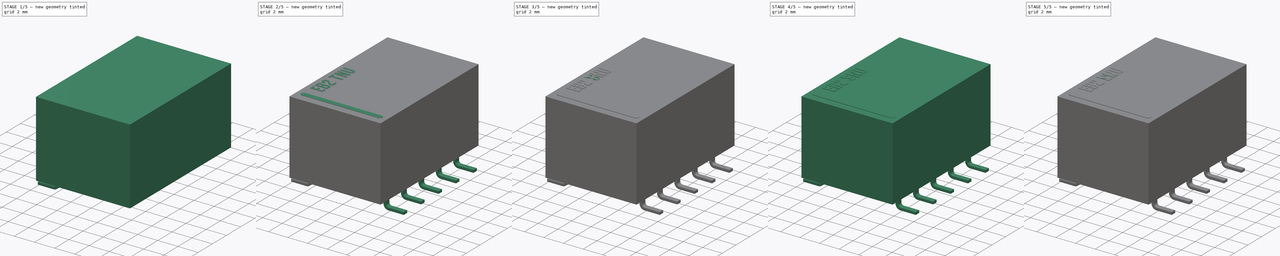
[diagram: build sequence overview — one tinted view per stage of 5, left to right]
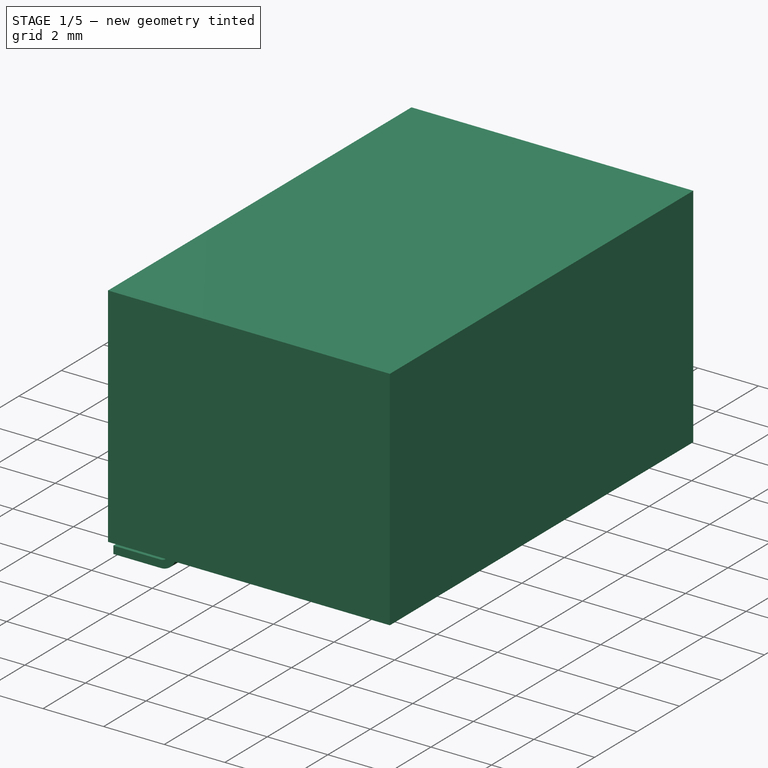
[diagram: stage 1 of 5 — iso view after this stage's code; geometry added in this stage tinted green]
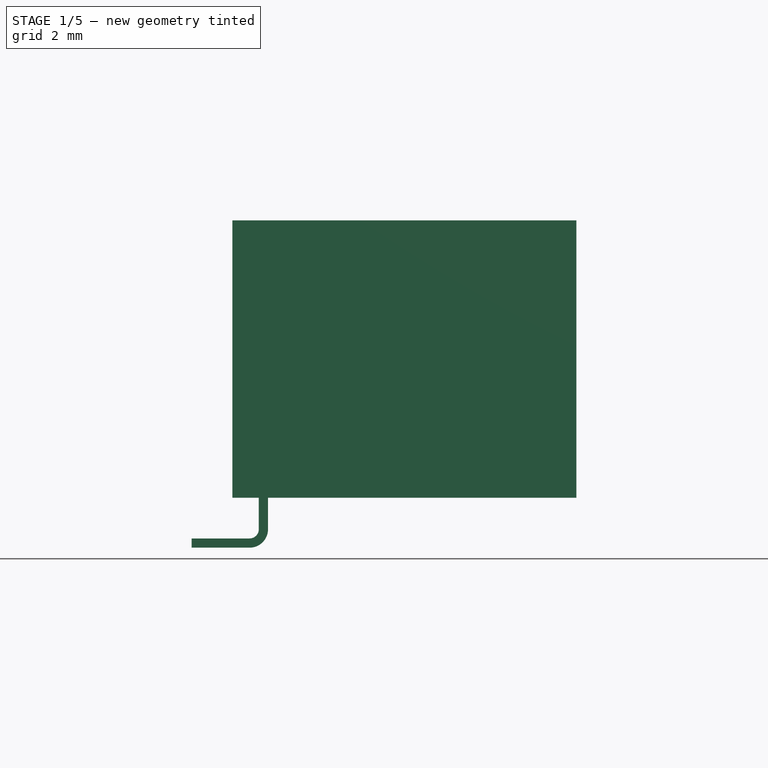
[diagram: stage 1 of 5 — front view after this stage's code; geometry added in this stage tinted green]
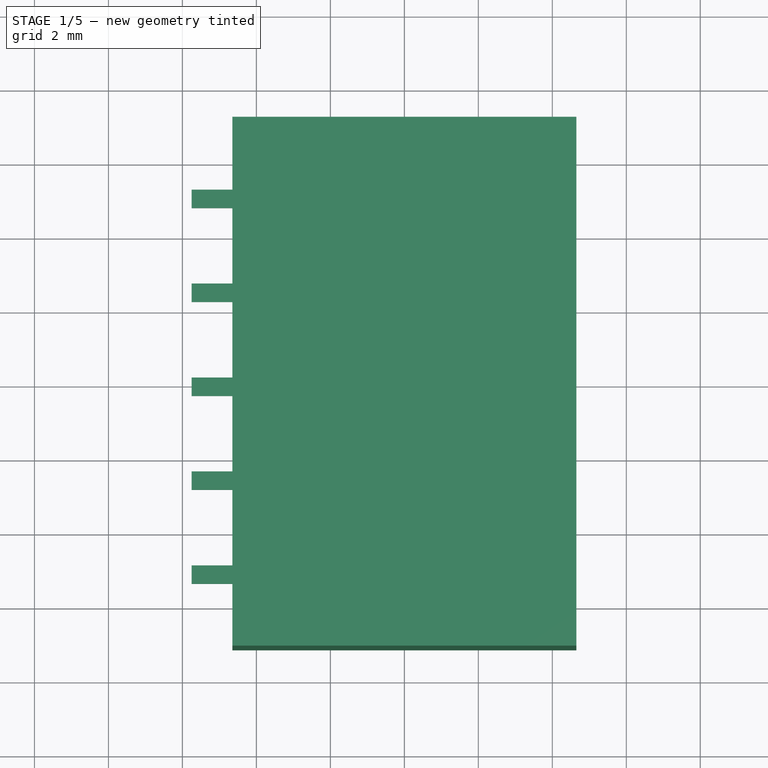
[diagram: stage 1 of 5 — top view after this stage's code; geometry added in this stage tinted green]
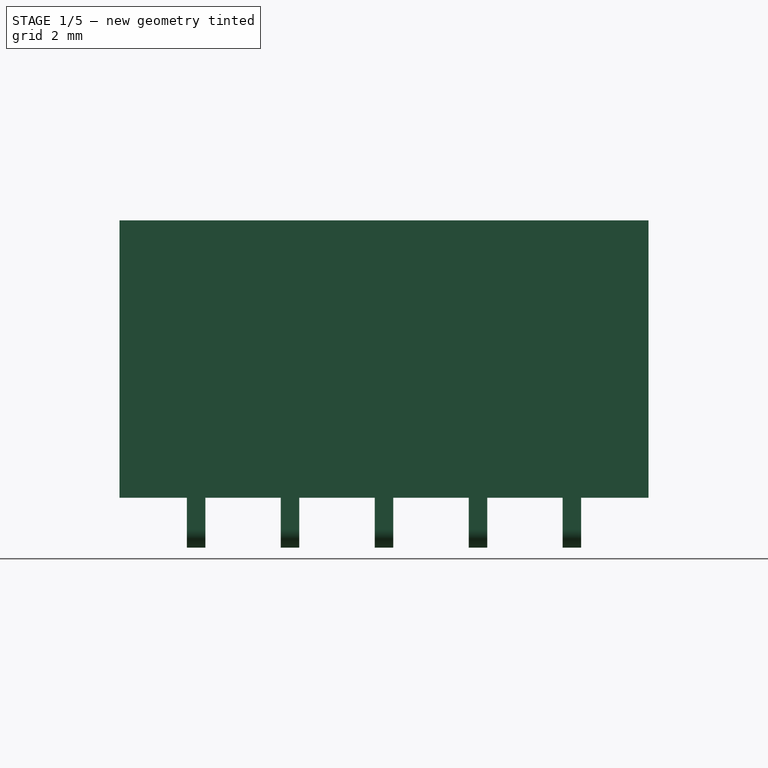
[diagram: stage 1 of 5 — right view after this stage's code; geometry added in this stage tinted green]
FCSTD DOCUMENT  (FreeCAD 0.19R16945 (Git))
Label: Kemet EB2 Series
License: All rights reserved
LicenseURL: http://en.wikipedia.org/wiki/All_rights_reserved
objects: Sketcher::SketchObject×18, PartDesign::Pad×15, PartDesign::Body×9, PartDesign::Pocket×6, PartDesign::Fillet×6, Part::FeaturePython×6, PartDesign::FeatureBase×3, Part::MultiFuse×3, Part::Part2DObjectPython×3, App::Part×3
note: 90 computed .brp shape members not serialized (recipe doc carries the construction recipe); baked Part::Feature solids carry a one-line shape summary decoded from their .brp

FEATURE [PartDesign::Body] Body003  label="EB2-SNU_Body"
  Group = -> [Sketch014,Pad010,Sketch012,Pocket005,Sketch015,Pocket004,Sketch013,Pad011,Sketch016,Pad012,ShapeString001,Pad013]
  Origin = -> Origin006
  Tip = -> Pad013
FEATURE [App::Part] Part001  label="EB2-SNU"
  Group = -> [Body003,Body005,Body004,Array002,Array003,Fusion001]
  Origin = -> Origin005
FEATURE [Sketcher::SketchObject] Sketch021
  AttachmentOffset = pos=(0,0,5.08) rot=(0,0,1;0rad)
  MapMode = 5
  Placement = pos=(0,-5.08,-1.1e-15) rot=(1,0,0;1.5708rad)
  Support = -> [XZ_Plane009]
  sketch-geometry (7):
    g0: LineSegment StartX=-3.935 StartY=1.35 StartZ=0 EndX=-3.935 EndY=0.25 EndZ=0
    g1: LineSegment StartX=-3.935 StartY=0.25 StartZ=0 EndX=-5.75 EndY=0.25 EndZ=0
    g2: LineSegment StartX=-5.75 StartY=0.25 StartZ=0 EndX=-5.75 EndY=0 EndZ=0
    g3: LineSegment StartX=-5.75 StartY=0 StartZ=0 EndX=-3.685 EndY=0 EndZ=0
    g4: LineSegment StartX=-3.685 StartY=0 StartZ=0 EndX=-3.685 EndY=1.35 EndZ=0
    g5: LineSegment StartX=-3.685 StartY=1.35 StartZ=0 EndX=-3.935 EndY=1.35 EndZ=0
    g6: GeomPoint X=-3.81 Y=1.35 Z=0
  constraints (19):
    c: Vertical(g0)
    c: Coincident(g0,g1)
    c: Horizontal(g1)
    c: Coincident(g1,g2)
    c: PointOnObject(g2,g-1)
    c: Vertical(g2)
    c: Coincident(g2,g3)
    c: Horizontal(g3)
    c: Coincident(g3,g4)
    c: Vertical(g4)
    c: Coincident(g4,g5)
    c: Coincident(g5,g0)
    c: Horizontal(g5)
    c: DistanceY(g2,g2) = 0.25
    c: Symmetric(g0,g4,g6)
    c: DistanceX(g6,g-1) = 3.81
    c: Equal(g5,g2)
    c: DistanceX(g1,g6) = 1.94
    c: DistanceY(g4,g4) = 1.35
FEATURE [PartDesign::Pad] Pad018
  Length = 0.5
  Length2 = 100
  Midplane = true
  Placement = pos=(0,0,0) rot=(1,0,0;1.5708rad)
  Profile = -> Sketch021
  Type = 0
FEATURE [PartDesign::Fillet] Fillet004
  Base = -> Pad018 [Edge2]
  BaseFeature = -> Pad018
  Placement = pos=(0,0,0) rot=(1,0,0;1.5708rad)
  Radius = 0.25
FEATURE [PartDesign::Fillet] Fillet005
  Base = -> Fillet004 [Edge20]
  BaseFeature = -> Fillet004
  Placement = pos=(0,0,0) rot=(1,0,0;1.5708rad)
  Radius = 0.5
FEATURE [Part::FeaturePython] Array005  # Draft array (typed FeaturePython)
  Angle = 360
  ArrayType = 0
  Axis = (0,0,1)
  Base = -> Body008
  Center = (0,0,0)
  Fuse = false
  IntervalAxis = (0,0,0)
  IntervalX = (1,0,0)
  IntervalY = (0,2.54,0)
  IntervalZ = (0,0,1)
  NumberPolar = 1
  NumberX = 1
  NumberY = 5
  NumberZ = 1
FEATURE [Sketcher::SketchObject] Sketch023
  MapMode = 5
  Support = -> [XY_Plane010]
  sketch-geometry (4):
    g0: LineSegment StartX=4.65 StartY=-7.15 StartZ=0 EndX=-4.65 EndY=-7.15 EndZ=0
    g1: LineSegment StartX=-4.65 StartY=-7.15 StartZ=0 EndX=-4.65 EndY=7.15 EndZ=0
    g2: LineSegment StartX=-4.65 StartY=7.15 StartZ=0 EndX=4.65 EndY=7.15 EndZ=0
    g3: LineSegment StartX=4.65 StartY=7.15 StartZ=0 EndX=4.65 EndY=-7.15 EndZ=0
  constraints (10):
    c: Coincident(g0,g1)
    c: Coincident(g1,g2)
    c: Coincident(g2,g3)
    c: Coincident(g3,g0)
    c: Horizontal(g0)
    c: Vertical(g1)
    c: Symmetric(g1,g2,g-2)
    c: Symmetric(g2,g0,g-1)
    c: DistanceX(g2,g2) = 9.3
    c: DistanceY(g3,g3) = 14.3
FEATURE [PartDesign::Pad] Pad015  label="MainPad002"
  Length = 8.85
  Length2 = 100
  Profile = -> Sketch023
  Type = 0
FEATURE [Sketcher::SketchObject] Sketch022
  ExternalGeometry = -> [Pad015]
  MapMode = 5
  Placement = pos=(-4.65,0,0) rot=(0.57735,-0.57735,-0.57735;2.0944rad)
  Support = -> [Pad015]
  sketch-geometry (4):
    g0: LineSegment StartX=-7.15 StartY=0 StartZ=0 EndX=7.15 EndY=0 EndZ=0
    g1: LineSegment StartX=7.15 StartY=0 StartZ=0 EndX=7.15 EndY=1.35 EndZ=0
    g2: LineSegment StartX=7.15 StartY=1.35 StartZ=0 EndX=-7.15 EndY=1.35 EndZ=0
    g3: LineSegment StartX=-7.15 StartY=1.35 StartZ=0 EndX=-7.15 EndY=0 EndZ=0
  constraints (11):
    c: Coincident(g0,g1)
    c: Coincident(g1,g2)
    c: Coincident(g2,g3)
    c: Coincident(g3,g0)
    c: Horizontal(g0)
    c: Horizontal(g2)
    c: Vertical(g1)
    c: Vertical(g3)
    c: Coincident(g0,g-3)
    c: PointOnObject(g1,g-4)
    c: DistanceY(g1,g1) = 1.35
FEATURE [PartDesign::Pocket] Pocket007  label="BottomPocket005"
  BaseFeature = -> Pad015
  Length = 5
  Length2 = 100
  Profile = -> Sketch022
  Type = 1
FEATURE [Sketcher::SketchObject] Sketch018
  MapMode = 5
  Placement = pos=(0,0,1.35) rot=(1,0,0;3.14159rad)
  Support = -> [Pocket007]
  sketch-geometry (4):
    g0: LineSegment StartX=-4.45 StartY=6.95 StartZ=0 EndX=4.45 EndY=6.95 EndZ=0
    g1: LineSegment StartX=4.45 StartY=6.95 StartZ=0 EndX=4.45 EndY=-6.95 EndZ=0
    g2: LineSegment StartX=4.45 StartY=-6.95 StartZ=0 EndX=-4.45 EndY=-6.95 EndZ=0
    g3: LineSegment StartX=-4.45 StartY=-6.95 StartZ=0 EndX=-4.45 EndY=6.95 EndZ=0
  constraints (8):
    c: Coincident(g0,g1)
    c: Coincident(g1,g2)
    c: Coincident(g2,g3)
    c: Coincident(g3,g0)
    c: Horizontal(g2)
    c: Vertical(g3)
    c: Symmetric(g0,g0,g-2)
    c: Symmetric(g0,g1,g-1)
FEATURE [PartDesign::Pocket] Pocket006  label="BottomPocket004"
  BaseFeature = -> Pocket007
  Length = 0.1
  Length2 = 100
  Profile = -> Sketch018
  Type = 0
FEATURE [Sketcher::SketchObject] Sketch019
  MapMode = 5
  Placement = pos=(0,0,1.45) rot=(1,0,0;3.14159rad)
  Support = -> [Pocket006]
  sketch-geometry (8):
    g0: LineSegment StartX=-1.8547 StartY=5.55085 StartZ=0 EndX=1.8547 EndY=5.55085 EndZ=0
    g1: LineSegment StartX=2.79274 StartY=4.61281 StartZ=0 EndX=2.79274 EndY=-4.61281 EndZ=0
    g2: LineSegment StartX=1.8547 StartY=-5.55085 StartZ=0 EndX=-1.8547 EndY=-5.55085 EndZ=0
    g3: LineSegment StartX=-2.79274 StartY=-4.61281 StartZ=0 EndX=-2.79274 EndY=4.61281 EndZ=0
    g4: ArcOfCircle CenterX=-1.8547 CenterY=4.61281 CenterZ=0 NormalX=0 NormalY=0 NormalZ=1 AngleXU=0 Radius=0.938044 StartAngle=1.5708 EndAngle=3.14159
    g5: ArcOfCircle CenterX=1.8547 CenterY=4.61281 CenterZ=0 NormalX=0 NormalY=0 NormalZ=1 AngleXU=0 Radius=0.938044 StartAngle=0 EndAngle=1.5708
    g6: ArcOfCircle CenterX=1.8547 CenterY=-4.61281 CenterZ=0 NormalX=0 NormalY=0 NormalZ=1 AngleXU=0 Radius=0.938044 StartAngle=4.71239 EndAngle=6.28319
    g7: ArcOfCircle CenterX=-1.8547 CenterY=-4.61281 CenterZ=0 NormalX=0 NormalY=0 NormalZ=1 AngleXU=0 Radius=0.938044 StartAngle=3.14159 EndAngle=4.71239
  constraints (15):
    c: Horizontal(g0)
    c: Horizontal(g2)
    c: Vertical(g1)
    c: Vertical(g3)
    c: Tangent(g0,g4) = 1.5708
    c: Tangent(g3,g4) = 1.5708
    c: Tangent(g0,g5) = 1.5708
    c: Tangent(g1,g5) = 1.5708
    c: Tangent(g1,g6) = 1.5708
    c: Tangent(g2,g6) = 1.5708
    c: Tangent(g2,g7) = 1.5708
    c: Tangent(g3,g7) = 1.5708
    c: Equal(g7,g6)
    c: Symmetric(g3,g1,g-2)
    c: Symmetric(g0,g2,g-1)
FEATURE [PartDesign::Pad] Pad017  label="BottomPad002"
  BaseFeature = -> Pocket006
  Length = 0.05
  Length2 = 100
  Profile = -> Sketch019
  Type = 0
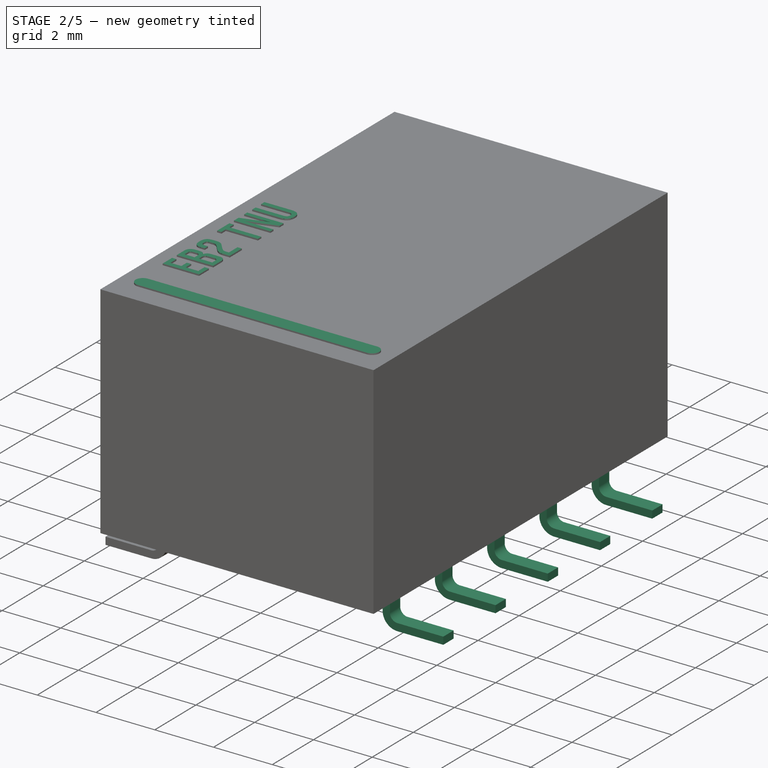
[diagram: stage 2 of 5 — iso view after this stage's code; geometry added in this stage tinted green]
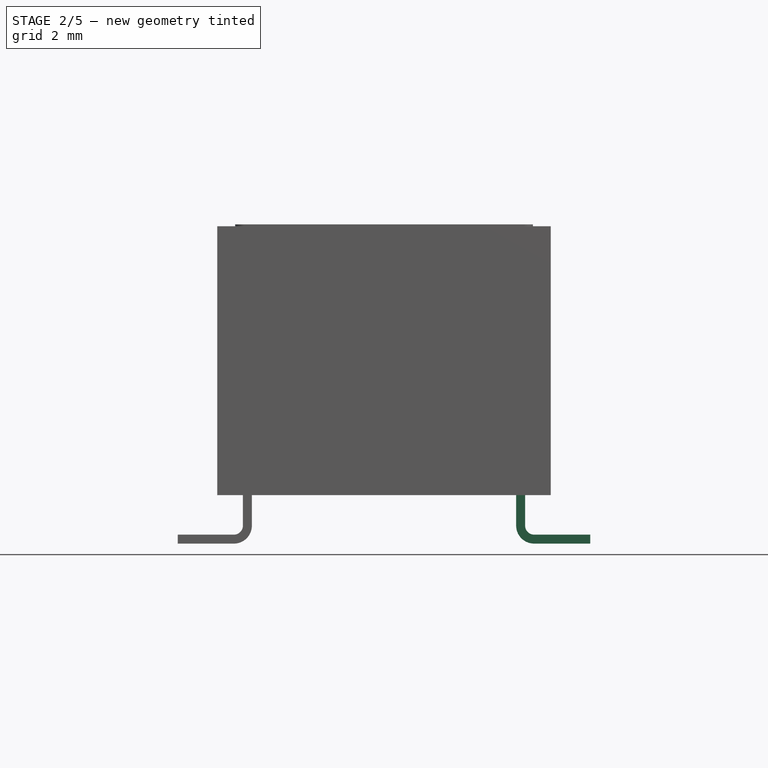
[diagram: stage 2 of 5 — front view after this stage's code; geometry added in this stage tinted green]
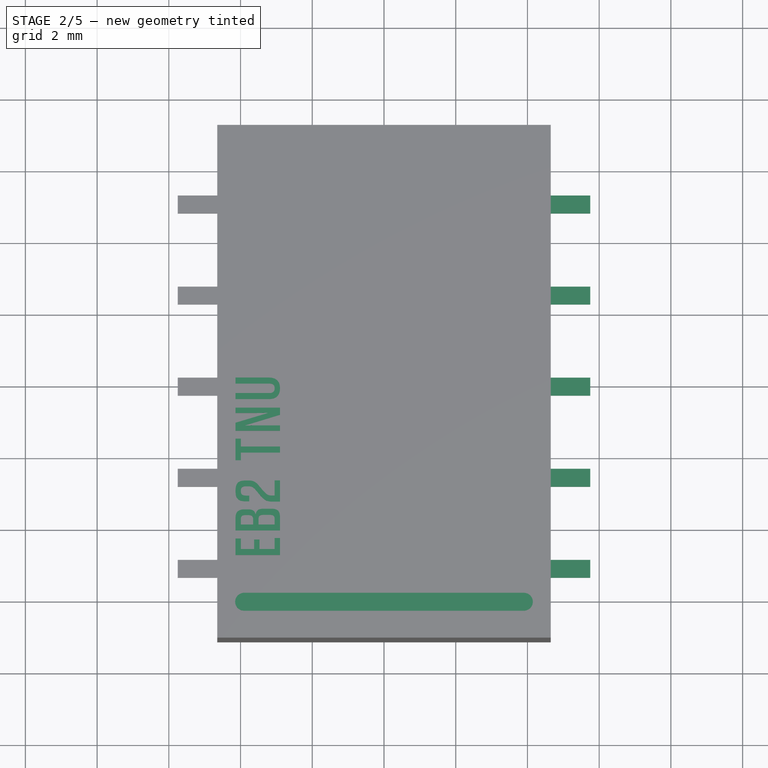
[diagram: stage 2 of 5 — top view after this stage's code; geometry added in this stage tinted green]
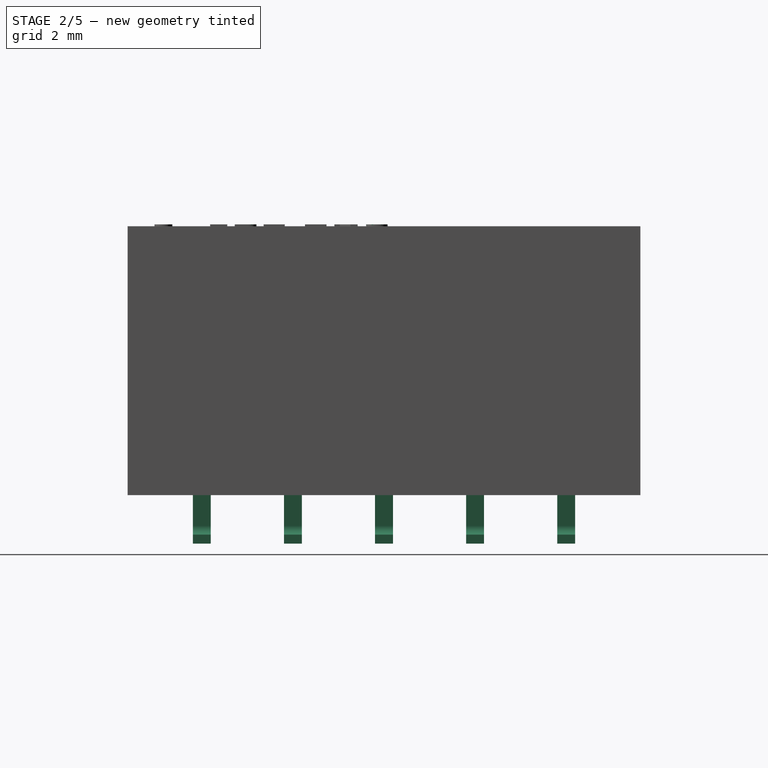
[diagram: stage 2 of 5 — right view after this stage's code; geometry added in this stage tinted green]
FEATURE [PartDesign::Pad] Pad010  label="MainPad001"
  Length = 8.85
  Length2 = 100
  Profile = -> Sketch014
  Type = 0
FEATURE [Sketcher::SketchObject] Sketch012
  ExternalGeometry = -> [Pad010]
  MapMode = 5
  Placement = pos=(-4.65,0,0) rot=(0.57735,-0.57735,-0.57735;2.0944rad)
  Support = -> [Pad010]
  sketch-geometry (4):
    g0: LineSegment StartX=-7.15 StartY=0 StartZ=0 EndX=7.15 EndY=0 EndZ=0
    g1: LineSegment StartX=7.15 StartY=0 StartZ=0 EndX=7.15 EndY=1.35 EndZ=0
    g2: LineSegment StartX=7.15 StartY=1.35 StartZ=0 EndX=-7.15 EndY=1.35 EndZ=0
    g3: LineSegment StartX=-7.15 StartY=1.35 StartZ=0 EndX=-7.15 EndY=0 EndZ=0
  constraints (11):
    c: Coincident(g0,g1)
    c: Coincident(g1,g2)
    c: Coincident(g2,g3)
    c: Coincident(g3,g0)
    c: Horizontal(g0)
    c: Horizontal(g2)
    c: Vertical(g1)
    c: Vertical(g3)
    c: Coincident(g0,g-3)
    c: PointOnObject(g1,g-4)
    c: DistanceY(g1,g1) = 1.35
FEATURE [PartDesign::Pocket] Pocket005  label="BottomPocket003"
  BaseFeature = -> Pad010
  Length = 5
  Length2 = 100
  Profile = -> Sketch012
  Type = 1
FEATURE [Sketcher::SketchObject] Sketch015
  MapMode = 5
  Placement = pos=(0,0,1.35) rot=(1,0,0;3.14159rad)
  Support = -> [Pocket005]
  sketch-geometry (4):
    g0: LineSegment StartX=-4.45 StartY=6.95 StartZ=0 EndX=4.45 EndY=6.95 EndZ=0
    g1: LineSegment StartX=4.45 StartY=6.95 StartZ=0 EndX=4.45 EndY=-6.95 EndZ=0
    g2: LineSegment StartX=4.45 StartY=-6.95 StartZ=0 EndX=-4.45 EndY=-6.95 EndZ=0
    g3: LineSegment StartX=-4.45 StartY=-6.95 StartZ=0 EndX=-4.45 EndY=6.95 EndZ=0
  constraints (8):
    c: Coincident(g0,g1)
    c: Coincident(g1,g2)
    c: Coincident(g2,g3)
    c: Coincident(g3,g0)
    c: Horizontal(g2)
    c: Vertical(g3)
    c: Symmetric(g0,g0,g-2)
    c: Symmetric(g0,g1,g-1)
FEATURE [PartDesign::Pocket] Pocket004  label="BottomPocket002"
  BaseFeature = -> Pocket005
  Length = 0.1
  Length2 = 100
  Profile = -> Sketch015
  Type = 0
FEATURE [PartDesign::Body] Body008
  Group = -> [Sketch021,Pad018,Fillet004,Fillet005]
  Origin = -> Origin010
  Tip = -> Fillet005
FEATURE [PartDesign::FeatureBase] Clone002
  BaseFeature = -> Body008
FEATURE [PartDesign::Body] Body006
  BaseFeature = -> Body008
  Group = -> [Clone002]
  Origin = -> Origin011
  Placement = pos=(0,0,0) rot=(0,0,1;3.14159rad)
  Tip = -> Clone002
FEATURE [Part::FeaturePython] Array004  # Draft array (typed FeaturePython)
  Angle = 360
  ArrayType = 0
  Axis = (0,0,1)
  Base = -> Body006
  Center = (0,0,0)
  Fuse = false
  IntervalAxis = (0,0,0)
  IntervalX = (1,0,0)
  IntervalY = (0,-2.54,0)
  IntervalZ = (0,0,1)
  NumberPolar = 1
  NumberX = 1
  NumberY = 5
  NumberZ = 1
FEATURE [Part::MultiFuse] Fusion002  label="EB2-TNU_Pins"
  Shapes = -> [Array005,Array004]
FEATURE [Sketcher::SketchObject] Sketch020
  ExternalGeometry = -> [Pad017]
  MapMode = 5
  Placement = pos=(0,0,8.85) rot=(0,0,1;0rad)
  Support = -> [Pad017]
  sketch-geometry (4):
    g0: ArcOfCircle CenterX=-3.9 CenterY=-6.15 CenterZ=0 NormalX=0 NormalY=0 NormalZ=1 AngleXU=0 Radius=0.25 StartAngle=1.5708 EndAngle=4.71239
    g1: ArcOfCircle CenterX=3.9 CenterY=-6.15 CenterZ=0 NormalX=0 NormalY=0 NormalZ=1 AngleXU=0 Radius=0.25 StartAngle=4.71239 EndAngle=7.85398
    g2: LineSegment StartX=-3.9 StartY=-6.4 StartZ=0 EndX=3.9 EndY=-6.4 EndZ=0
    g3: LineSegment StartX=-3.9 StartY=-5.9 StartZ=0 EndX=3.9 EndY=-5.9 EndZ=0
  constraints (9):
    c: Tangent(g0,g3) = 1.5708
    c: Tangent(g0,g2) = -1.5708
    c: Tangent(g2,g1) = -1.5708
    c: Tangent(g3,g1) = 1.5708
    c: Horizontal(g2)
    c: Symmetric(g1,g0,g-2)
    c: DistanceY(g1,g1) = 0.5
    c: DistanceY(g-3,g0) = 1
    c: DistanceX(g-3,g0) = 0.75
FEATURE [PartDesign::Pad] Pad016  label="CoilMarkingPad002"
  BaseFeature = -> Pad017
  Length = 0.05
  Length2 = 100
  Profile = -> Sketch020
  Type = 0
FEATURE [Part::Part2DObjectPython] ShapeString002  # Draft 2D object (typed FeaturePython)
  AttachmentOffset = pos=(-1,-1,0) rot=(0,0,-1;1.5708rad)
  FontFile = <userpath>/Desktop/GitHub/freecad-projects/00-fonts/coolvetica condensed rg.ttf
  MapMode = 6
  Placement = pos=(-2.9,-4.9,8.85) rot=(0,0,1;1.5708rad)
  Size = 0.75
  String = EB2 TNU
  Support = -> [Pad016]
  Tracking = 0.125
FEATURE [PartDesign::Pad] Pad014  label="ShapeStringPad002"
  BaseFeature = -> Pad016
  Length = 0.05
  Length2 = 100
  Profile = -> ShapeString002
  Refine = true
  Type = 0
FEATURE [PartDesign::Body] Body007  label="EB2-TNU_Body"
  Group = -> [Sketch023,Pad015,Sketch022,Pocket007,Sketch018,Pocket006,Sketch019,Pad017,Sketch020,Pad016,ShapeString002,Pad014]
  Origin = -> Origin009
  Tip = -> Pad014
FEATURE [App::Part] Part002  label="EB2-TNU"
  Group = -> [Body007,Body008,Body006,Array005,Array004,Fusion002]
  Origin = -> Origin008
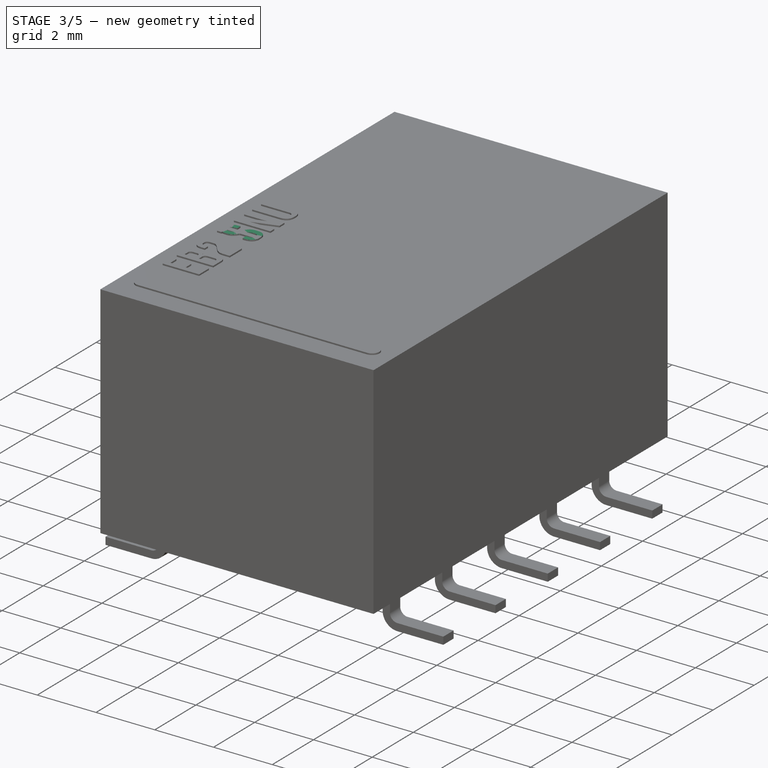
[diagram: stage 3 of 5 — iso view after this stage's code; geometry added in this stage tinted green]
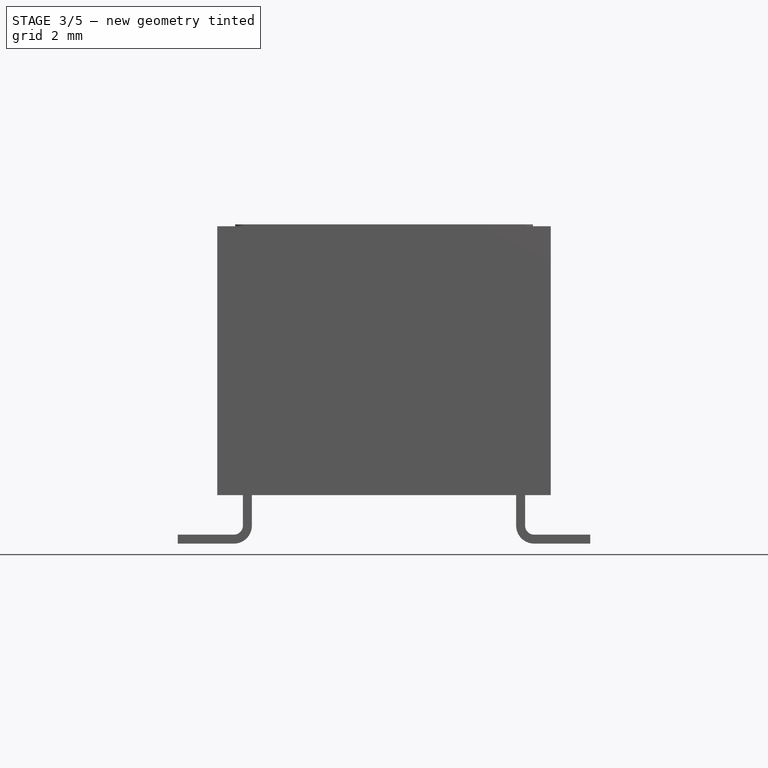
[diagram: stage 3 of 5 — front view after this stage's code; geometry added in this stage tinted green]
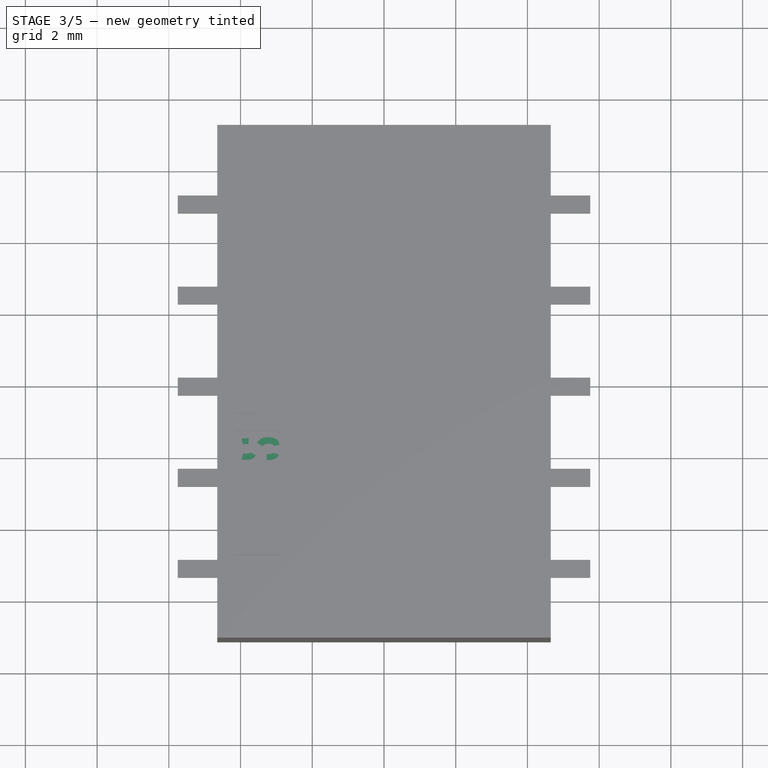
[diagram: stage 3 of 5 — top view after this stage's code; geometry added in this stage tinted green]
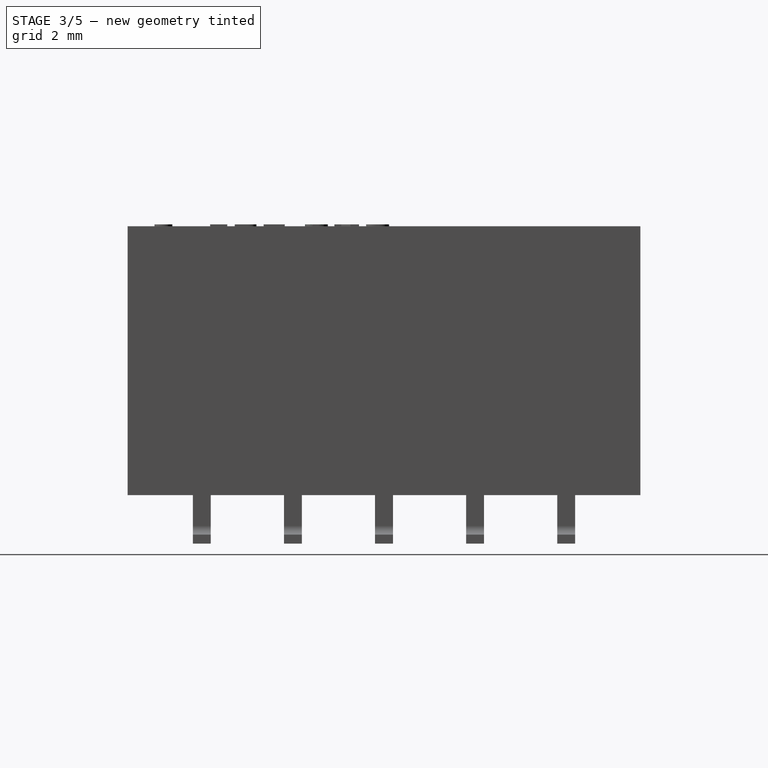
[diagram: stage 3 of 5 — right view after this stage's code; geometry added in this stage tinted green]
FEATURE [PartDesign::Body] Body  label="EB2-NU_Body"
  Group = -> [Sketch,Pad,Sketch003,Pocket,Sketch007,Pocket003,Sketch008,Pad004,Sketch010,Pad006,ShapeString,Pad008]
  Origin = -> Origin
  Tip = -> Pad008
FEATURE [App::Part] Part  label="EB2-NU"
  Group = -> [Body,Body001,Body002,Array,Array001,Fusion]
  Origin = -> Origin001
FEATURE [Sketcher::SketchObject] Sketch014
  MapMode = 5
  Support = -> [XY_Plane005]
  sketch-geometry (4):
    g0: LineSegment StartX=4.65 StartY=-7.15 StartZ=0 EndX=-4.65 EndY=-7.15 EndZ=0
    g1: LineSegment StartX=-4.65 StartY=-7.15 StartZ=0 EndX=-4.65 EndY=7.15 EndZ=0
    g2: LineSegment StartX=-4.65 StartY=7.15 StartZ=0 EndX=4.65 EndY=7.15 EndZ=0
    g3: LineSegment StartX=4.65 StartY=7.15 StartZ=0 EndX=4.65 EndY=-7.15 EndZ=0
  constraints (10):
    c: Coincident(g0,g1)
    c: Coincident(g1,g2)
    c: Coincident(g2,g3)
    c: Coincident(g3,g0)
    c: Horizontal(g0)
    c: Vertical(g1)
    c: Symmetric(g1,g2,g-2)
    c: Symmetric(g2,g0,g-1)
    c: DistanceX(g2,g2) = 9.3
    c: DistanceY(g3,g3) = 14.3
FEATURE [Sketcher::SketchObject] Sketch017
  AttachmentOffset = pos=(0,0,5.08) rot=(0,0,1;0rad)
  MapMode = 5
  Placement = pos=(0,-5.08,-1.1e-15) rot=(1,0,0;1.5708rad)
  Support = -> [XZ_Plane007]
  sketch-geometry (7):
    g0: LineSegment StartX=-3.935 StartY=1.35 StartZ=0 EndX=-3.935 EndY=0.25 EndZ=0
    g1: LineSegment StartX=-3.935 StartY=0.25 StartZ=0 EndX=-5.75 EndY=0.25 EndZ=0
    g2: LineSegment StartX=-5.75 StartY=0.25 StartZ=0 EndX=-5.75 EndY=0 EndZ=0
    g3: LineSegment StartX=-5.75 StartY=0 StartZ=0 EndX=-3.685 EndY=0 EndZ=0
    g4: LineSegment StartX=-3.685 StartY=0 StartZ=0 EndX=-3.685 EndY=1.35 EndZ=0
    g5: LineSegment StartX=-3.685 StartY=1.35 StartZ=0 EndX=-3.935 EndY=1.35 EndZ=0
    g6: GeomPoint X=-3.81 Y=1.35 Z=0
  constraints (19):
    c: Vertical(g0)
    c: Coincident(g0,g1)
    c: Horizontal(g1)
    c: Coincident(g1,g2)
    c: PointOnObject(g2,g-1)
    c: Vertical(g2)
    c: Coincident(g2,g3)
    c: Horizontal(g3)
    c: Coincident(g3,g4)
    c: Vertical(g4)
    c: Coincident(g4,g5)
    c: Coincident(g5,g0)
    c: Horizontal(g5)
    c: DistanceY(g2,g2) = 0.25
    c: Symmetric(g0,g4,g6)
    c: DistanceX(g6,g-1) = 3.81
    c: Equal(g5,g2)
    c: DistanceX(g1,g6) = 1.94
    c: DistanceY(g4,g4) = 1.35
FEATURE [PartDesign::Pad] Pad009
  Length = 0.5
  Length2 = 100
  Midplane = true
  Placement = pos=(0,0,0) rot=(1,0,0;1.5708rad)
  Profile = -> Sketch017
  Type = 0
FEATURE [PartDesign::Fillet] Fillet002
  Base = -> Pad009 [Edge2]
  BaseFeature = -> Pad009
  Placement = pos=(0,0,0) rot=(1,0,0;1.5708rad)
  Radius = 0.25
FEATURE [PartDesign::Fillet] Fillet003
  Base = -> Fillet002 [Edge20]
  BaseFeature = -> Fillet002
  Placement = pos=(0,0,0) rot=(1,0,0;1.5708rad)
  Radius = 0.5
FEATURE [PartDesign::Body] Body005
  Group = -> [Sketch017,Pad009,Fillet002,Fillet003]
  Origin = -> Origin007
  Tip = -> Fillet003
FEATURE [PartDesign::FeatureBase] Clone001
  BaseFeature = -> Body005
FEATURE [Sketcher::SketchObject] Sketch013
  MapMode = 5
  Placement = pos=(0,0,1.45) rot=(1,0,0;3.14159rad)
  Support = -> [Pocket004]
  sketch-geometry (8):
    g0: LineSegment StartX=-1.8547 StartY=5.55085 StartZ=0 EndX=1.8547 EndY=5.55085 EndZ=0
    g1: LineSegment StartX=2.79274 StartY=4.61281 StartZ=0 EndX=2.79274 EndY=-4.61281 EndZ=0
    g2: LineSegment StartX=1.8547 StartY=-5.55085 StartZ=0 EndX=-1.8547 EndY=-5.55085 EndZ=0
    g3: LineSegment StartX=-2.79274 StartY=-4.61281 StartZ=0 EndX=-2.79274 EndY=4.61281 EndZ=0
    g4: ArcOfCircle CenterX=-1.8547 CenterY=4.61281 CenterZ=0 NormalX=0 NormalY=0 NormalZ=1 AngleXU=0 Radius=0.938044 StartAngle=1.5708 EndAngle=3.14159
    g5: ArcOfCircle CenterX=1.8547 CenterY=4.61281 CenterZ=0 NormalX=0 NormalY=0 NormalZ=1 AngleXU=0 Radius=0.938044 StartAngle=0 EndAngle=1.5708
    g6: ArcOfCircle CenterX=1.8547 CenterY=-4.61281 CenterZ=0 NormalX=0 NormalY=0 NormalZ=1 AngleXU=0 Radius=0.938044 StartAngle=4.71239 EndAngle=6.28319
    g7: ArcOfCircle CenterX=-1.8547 CenterY=-4.61281 CenterZ=0 NormalX=0 NormalY=0 NormalZ=1 AngleXU=0 Radius=0.938044 StartAngle=3.14159 EndAngle=4.71239
  constraints (15):
    c: Horizontal(g0)
    c: Horizontal(g2)
    c: Vertical(g1)
    c: Vertical(g3)
    c: Tangent(g0,g4) = 1.5708
    c: Tangent(g3,g4) = 1.5708
    c: Tangent(g0,g5) = 1.5708
    c: Tangent(g1,g5) = 1.5708
    c: Tangent(g1,g6) = 1.5708
    c: Tangent(g2,g6) = 1.5708
    c: Tangent(g2,g7) = 1.5708
    c: Tangent(g3,g7) = 1.5708
    c: Equal(g7,g6)
    c: Symmetric(g3,g1,g-2)
    c: Symmetric(g0,g2,g-1)
FEATURE [PartDesign::Pad] Pad011  label="BottomPad001"
  BaseFeature = -> Pocket004
  Length = 0.05
  Length2 = 100
  Profile = -> Sketch013
  Type = 0
FEATURE [Sketcher::SketchObject] Sketch016
  ExternalGeometry = -> [Pad011]
  MapMode = 5
  Placement = pos=(0,0,8.85) rot=(0,0,1;0rad)
  Support = -> [Pad011]
  sketch-geometry (4):
    g0: ArcOfCircle CenterX=-3.9 CenterY=-6.15 CenterZ=0 NormalX=0 NormalY=0 NormalZ=1 AngleXU=0 Radius=0.25 StartAngle=1.5708 EndAngle=4.71239
    g1: ArcOfCircle CenterX=3.9 CenterY=-6.15 CenterZ=0 NormalX=0 NormalY=0 NormalZ=1 AngleXU=0 Radius=0.25 StartAngle=4.71239 EndAngle=7.85398
    g2: LineSegment StartX=-3.9 StartY=-6.4 StartZ=0 EndX=3.9 EndY=-6.4 EndZ=0
    g3: LineSegment StartX=-3.9 StartY=-5.9 StartZ=0 EndX=3.9 EndY=-5.9 EndZ=0
  constraints (9):
    c: Tangent(g0,g3) = 1.5708
    c: Tangent(g0,g2) = -1.5708
    c: Tangent(g2,g1) = -1.5708
    c: Tangent(g3,g1) = 1.5708
    c: Horizontal(g2)
    c: Symmetric(g1,g0,g-2)
    c: DistanceY(g1,g1) = 0.5
    c: DistanceY(g-3,g0) = 1
    c: DistanceX(g-3,g0) = 0.75
FEATURE [PartDesign::Pad] Pad012  label="CoilMarkingPad001"
  BaseFeature = -> Pad011
  Length = 0.05
  Length2 = 100
  Profile = -> Sketch016
  Type = 0
FEATURE [Part::Part2DObjectPython] ShapeString001  # Draft 2D object (typed FeaturePython)
  AttachmentOffset = pos=(-1,-1,0) rot=(0,0,-1;1.5708rad)
  FontFile = <userpath>/Desktop/GitHub/freecad-projects/00-fonts/coolvetica condensed rg.ttf
  MapMode = 6
  Placement = pos=(-2.9,-4.9,8.85) rot=(0,0,1;1.5708rad)
  Size = 0.75
  String = EB2 SNU
  Support = -> [Pad012]
  Tracking = 0.125
FEATURE [PartDesign::Pad] Pad013  label="ShapeStringPad001"
  BaseFeature = -> Pad012
  Length = 0.05
  Length2 = 100
  Profile = -> ShapeString001
  Refine = true
  Type = 0
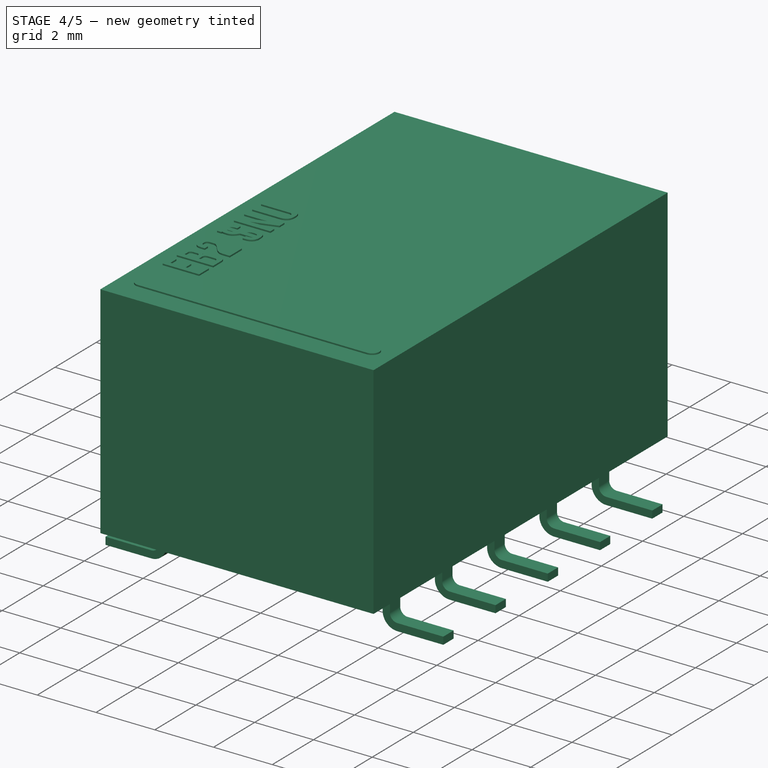
[diagram: stage 4 of 5 — iso view after this stage's code; geometry added in this stage tinted green]
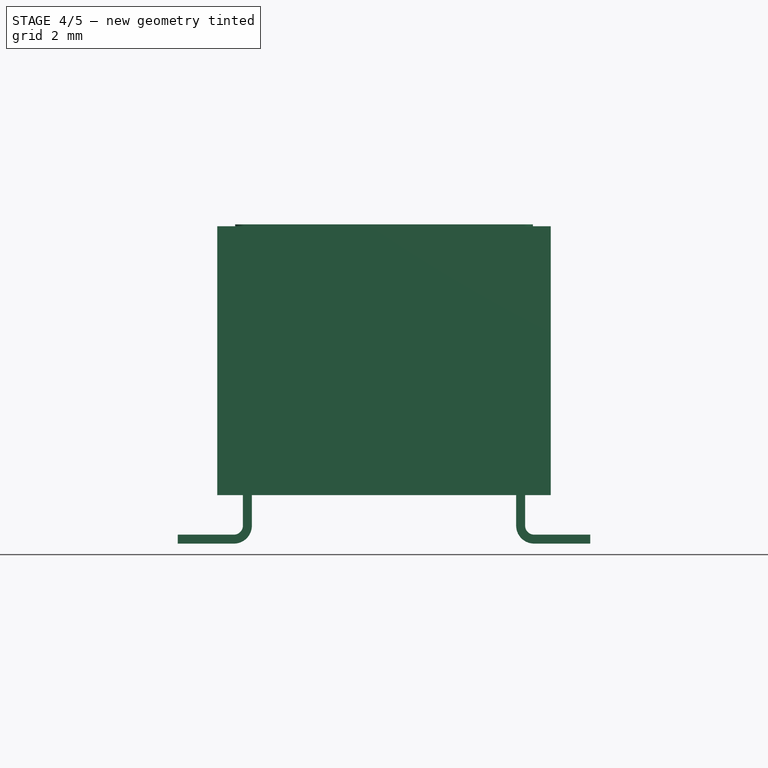
[diagram: stage 4 of 5 — front view after this stage's code; geometry added in this stage tinted green]
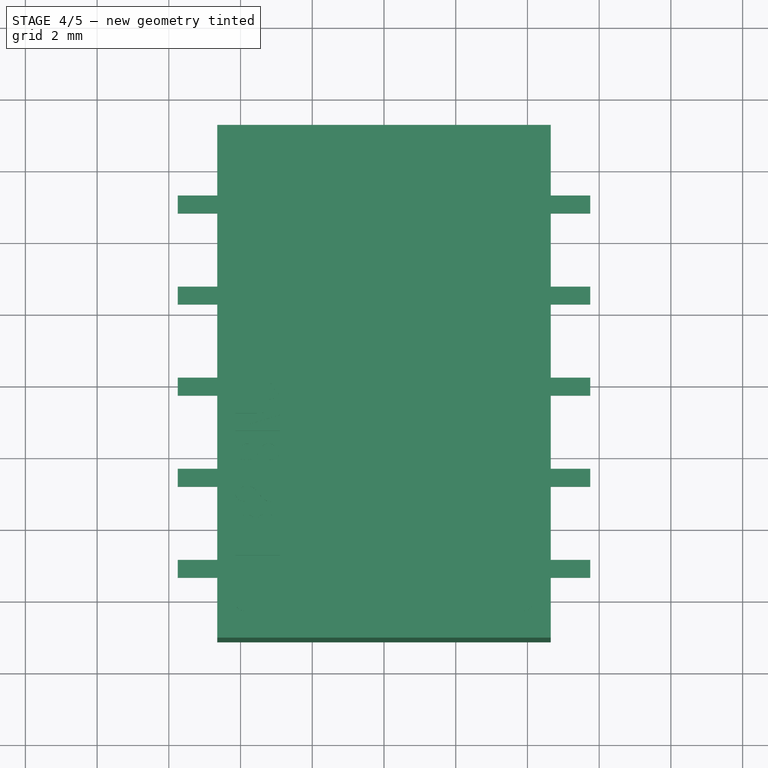
[diagram: stage 4 of 5 — top view after this stage's code; geometry added in this stage tinted green]
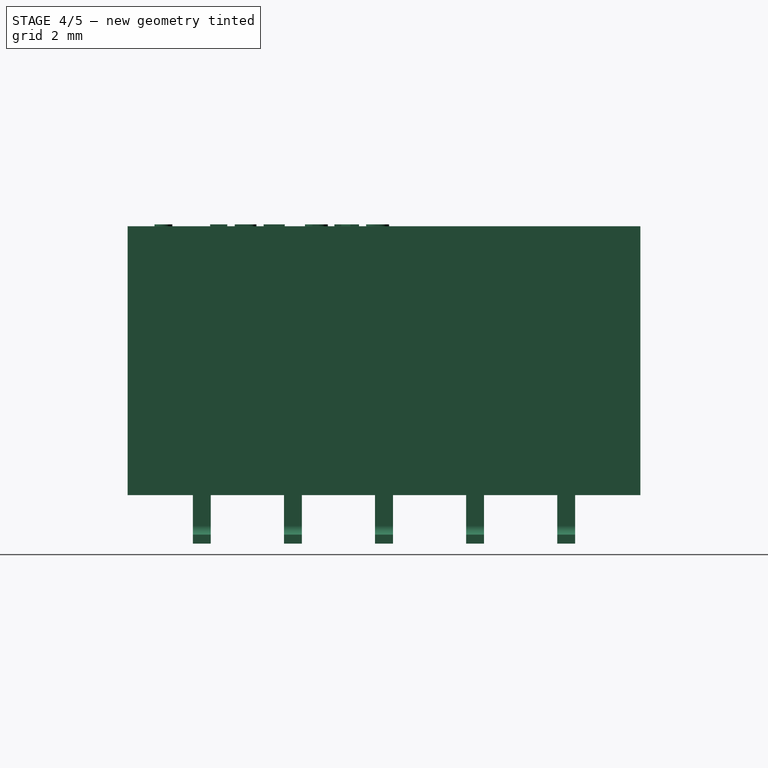
[diagram: stage 4 of 5 — right view after this stage's code; geometry added in this stage tinted green]
FEATURE [Sketcher::SketchObject] Sketch
  MapMode = 5
  Support = -> [XY_Plane]
  sketch-geometry (4):
    g0: LineSegment StartX=4.65 StartY=-7.15 StartZ=0 EndX=-4.65 EndY=-7.15 EndZ=0
    g1: LineSegment StartX=-4.65 StartY=-7.15 StartZ=0 EndX=-4.65 EndY=7.15 EndZ=0
    g2: LineSegment StartX=-4.65 StartY=7.15 StartZ=0 EndX=4.65 EndY=7.15 EndZ=0
    g3: LineSegment StartX=4.65 StartY=7.15 StartZ=0 EndX=4.65 EndY=-7.15 EndZ=0
  constraints (10):
    c: Coincident(g0,g1)
    c: Coincident(g1,g2)
    c: Coincident(g2,g3)
    c: Coincident(g3,g0)
    c: Horizontal(g0)
    c: Vertical(g1)
    c: Symmetric(g1,g2,g-2)
    c: Symmetric(g2,g0,g-1)
    c: DistanceX(g2,g2) = 9.3
    c: DistanceY(g3,g3) = 14.3
FEATURE [PartDesign::Pad] Pad  label="MainPad"
  Length = 8.85
  Length2 = 100
  Profile = -> Sketch
  Type = 0
FEATURE [Sketcher::SketchObject] Sketch003
  ExternalGeometry = -> [Pad]
  MapMode = 5
  Placement = pos=(-4.65,0,0) rot=(0.57735,-0.57735,-0.57735;2.0944rad)
  Support = -> [Pad]
  sketch-geometry (4):
    g0: LineSegment StartX=-7.15 StartY=0 StartZ=0 EndX=7.15 EndY=0 EndZ=0
    g1: LineSegment StartX=7.15 StartY=0 StartZ=0 EndX=7.15 EndY=1.35 EndZ=0
    g2: LineSegment StartX=7.15 StartY=1.35 StartZ=0 EndX=-7.15 EndY=1.35 EndZ=0
    g3: LineSegment StartX=-7.15 StartY=1.35 StartZ=0 EndX=-7.15 EndY=0 EndZ=0
  constraints (11):
    c: Coincident(g0,g1)
    c: Coincident(g1,g2)
    c: Coincident(g2,g3)
    c: Coincident(g3,g0)
    c: Horizontal(g0)
    c: Horizontal(g2)
    c: Vertical(g1)
    c: Vertical(g3)
    c: Coincident(g0,g-3)
    c: PointOnObject(g1,g-4)
    c: DistanceY(g1,g1) = 1.35
FEATURE [PartDesign::Pocket] Pocket  label="BottomPocket"
  BaseFeature = -> Pad
  Length = 5
  Length2 = 100
  Profile = -> Sketch003
  Type = 1
FEATURE [Sketcher::SketchObject] Sketch007
  MapMode = 5
  Placement = pos=(0,0,1.35) rot=(1,0,0;3.14159rad)
  Support = -> [Pocket]
  sketch-geometry (4):
    g0: LineSegment StartX=-4.45 StartY=6.95 StartZ=0 EndX=4.45 EndY=6.95 EndZ=0
    g1: LineSegment StartX=4.45 StartY=6.95 StartZ=0 EndX=4.45 EndY=-6.95 EndZ=0
    g2: LineSegment StartX=4.45 StartY=-6.95 StartZ=0 EndX=-4.45 EndY=-6.95 EndZ=0
    g3: LineSegment StartX=-4.45 StartY=-6.95 StartZ=0 EndX=-4.45 EndY=6.95 EndZ=0
  constraints (8):
    c: Coincident(g0,g1)
    c: Coincident(g1,g2)
    c: Coincident(g2,g3)
    c: Coincident(g3,g0)
    c: Horizontal(g2)
    c: Vertical(g3)
    c: Symmetric(g0,g0,g-2)
    c: Symmetric(g0,g1,g-1)
FEATURE [PartDesign::Pocket] Pocket003  label="BottomPocket001"
  BaseFeature = -> Pocket
  Length = 0.1
  Length2 = 100
  Profile = -> Sketch007
  Type = 0
FEATURE [Sketcher::SketchObject] Sketch008
  MapMode = 5
  Placement = pos=(0,0,1.45) rot=(1,0,0;3.14159rad)
  Support = -> [Pocket003]
  sketch-geometry (8):
    g0: LineSegment StartX=-1.8547 StartY=5.55085 StartZ=0 EndX=1.8547 EndY=5.55085 EndZ=0
    g1: LineSegment StartX=2.79274 StartY=4.61281 StartZ=0 EndX=2.79274 EndY=-4.61281 EndZ=0
    g2: LineSegment StartX=1.8547 StartY=-5.55085 StartZ=0 EndX=-1.8547 EndY=-5.55085 EndZ=0
    g3: LineSegment StartX=-2.79274 StartY=-4.61281 StartZ=0 EndX=-2.79274 EndY=4.61281 EndZ=0
    g4: ArcOfCircle CenterX=-1.8547 CenterY=4.61281 CenterZ=0 NormalX=0 NormalY=0 NormalZ=1 AngleXU=0 Radius=0.938044 StartAngle=1.5708 EndAngle=3.14159
    g5: ArcOfCircle CenterX=1.8547 CenterY=4.61281 CenterZ=0 NormalX=0 NormalY=0 NormalZ=1 AngleXU=0 Radius=0.938044 StartAngle=0 EndAngle=1.5708
    g6: ArcOfCircle CenterX=1.8547 CenterY=-4.61281 CenterZ=0 NormalX=0 NormalY=0 NormalZ=1 AngleXU=0 Radius=0.938044 StartAngle=4.71239 EndAngle=6.28319
    g7: ArcOfCircle CenterX=-1.8547 CenterY=-4.61281 CenterZ=0 NormalX=0 NormalY=0 NormalZ=1 AngleXU=0 Radius=0.938044 StartAngle=3.14159 EndAngle=4.71239
  constraints (15):
    c: Horizontal(g0)
    c: Horizontal(g2)
    c: Vertical(g1)
    c: Vertical(g3)
    c: Tangent(g0,g4) = 1.5708
    c: Tangent(g3,g4) = 1.5708
    c: Tangent(g0,g5) = 1.5708
    c: Tangent(g1,g5) = 1.5708
    c: Tangent(g1,g6) = 1.5708
    c: Tangent(g2,g6) = 1.5708
    c: Tangent(g2,g7) = 1.5708
    c: Tangent(g3,g7) = 1.5708
    c: Equal(g7,g6)
    c: Symmetric(g3,g1,g-2)
    c: Symmetric(g0,g2,g-1)
FEATURE [PartDesign::Pad] Pad004  label="BottomPad"
  BaseFeature = -> Pocket003
  Length = 0.05
  Length2 = 100
  Profile = -> Sketch008
  Type = 0
FEATURE [Sketcher::SketchObject] Sketch010
  ExternalGeometry = -> [Pad004]
  MapMode = 5
  Placement = pos=(0,0,8.85) rot=(0,0,1;0rad)
  Support = -> [Pad004]
  sketch-geometry (4):
    g0: ArcOfCircle CenterX=-3.9 CenterY=-6.15 CenterZ=0 NormalX=0 NormalY=0 NormalZ=1 AngleXU=0 Radius=0.25 StartAngle=1.5708 EndAngle=4.71239
    g1: ArcOfCircle CenterX=3.9 CenterY=-6.15 CenterZ=0 NormalX=0 NormalY=0 NormalZ=1 AngleXU=0 Radius=0.25 StartAngle=4.71239 EndAngle=7.85398
    g2: LineSegment StartX=-3.9 StartY=-6.4 StartZ=0 EndX=3.9 EndY=-6.4 EndZ=0
    g3: LineSegment StartX=-3.9 StartY=-5.9 StartZ=0 EndX=3.9 EndY=-5.9 EndZ=0
  constraints (9):
    c: Tangent(g0,g3) = 1.5708
    c: Tangent(g0,g2) = -1.5708
    c: Tangent(g2,g1) = -1.5708
    c: Tangent(g3,g1) = 1.5708
    c: Horizontal(g2)
    c: Symmetric(g1,g0,g-2)
    c: DistanceY(g1,g1) = 0.5
    c: DistanceY(g-3,g0) = 1
    c: DistanceX(g-3,g0) = 0.75
FEATURE [PartDesign::Pad] Pad006  label="CoilMarkingPad"
  BaseFeature = -> Pad004
  Length = 0.05
  Length2 = 100
  Profile = -> Sketch010
  Type = 0
FEATURE [Part::FeaturePython] Array002  # Draft array (typed FeaturePython)
  Angle = 360
  ArrayType = 0
  Axis = (0,0,1)
  Base = -> Body005
  Center = (0,0,0)
  Fuse = false
  IntervalAxis = (0,0,0)
  IntervalX = (1,0,0)
  IntervalY = (0,2.54,0)
  IntervalZ = (0,0,1)
  NumberPolar = 1
  NumberX = 1
  NumberY = 5
  NumberZ = 1
FEATURE [PartDesign::Body] Body004
  BaseFeature = -> Body005
  Group = -> [Clone001]
  Origin = -> Origin004
  Placement = pos=(0,0,0) rot=(0,0,1;3.14159rad)
  Tip = -> Clone001
FEATURE [Part::FeaturePython] Array003  # Draft array (typed FeaturePython)
  Angle = 360
  ArrayType = 0
  Axis = (0,0,1)
  Base = -> Body004
  Center = (0,0,0)
  Fuse = false
  IntervalAxis = (0,0,0)
  IntervalX = (1,0,0)
  IntervalY = (0,-2.54,0)
  IntervalZ = (0,0,1)
  NumberPolar = 1
  NumberX = 1
  NumberY = 5
  NumberZ = 1
FEATURE [Part::MultiFuse] Fusion001  label="EB2-SNU_Pins"
  Shapes = -> [Array002,Array003]
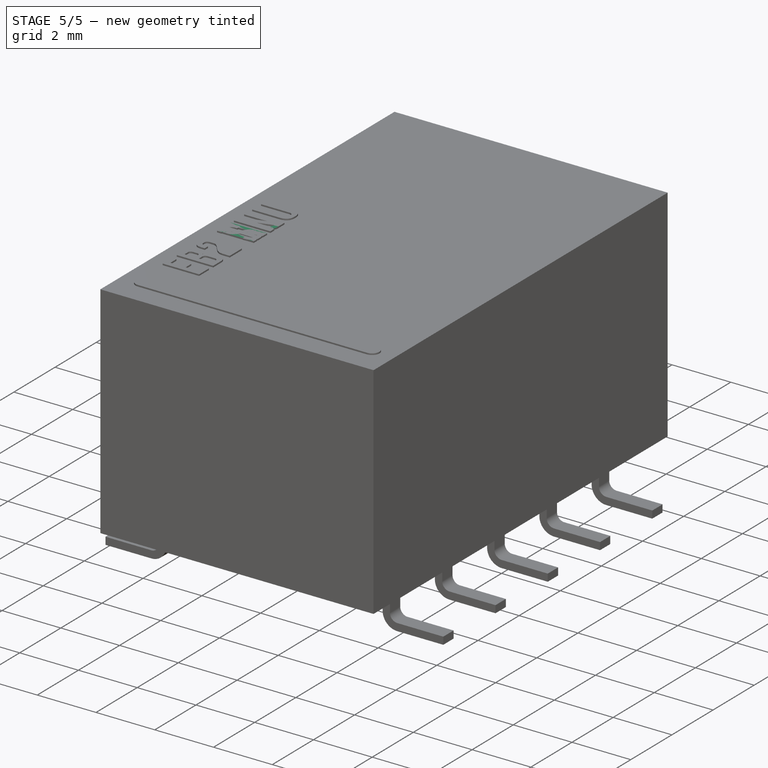
[diagram: stage 5 of 5 — iso view after this stage's code; geometry added in this stage tinted green]
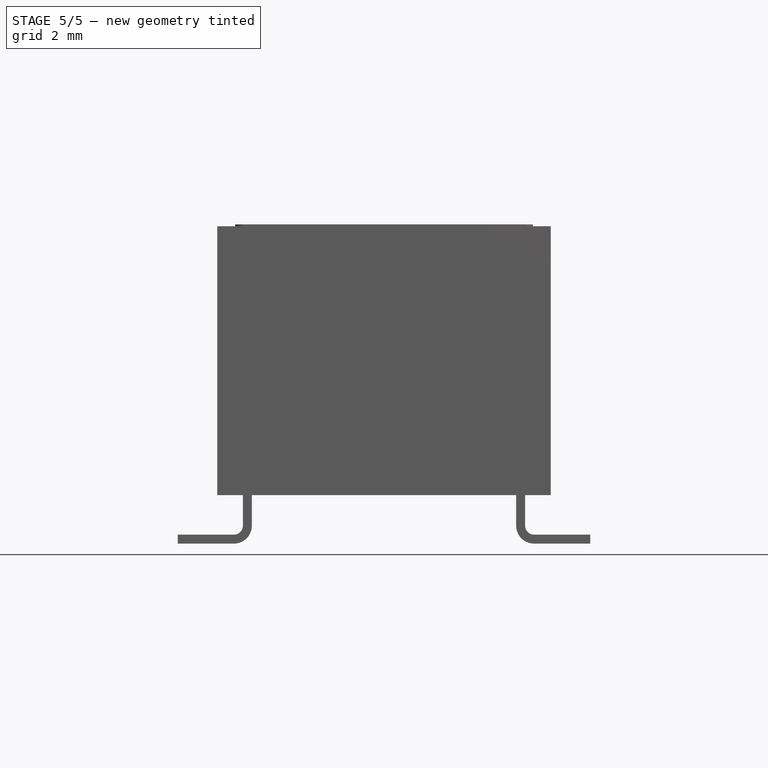
[diagram: stage 5 of 5 — front view after this stage's code; geometry added in this stage tinted green]
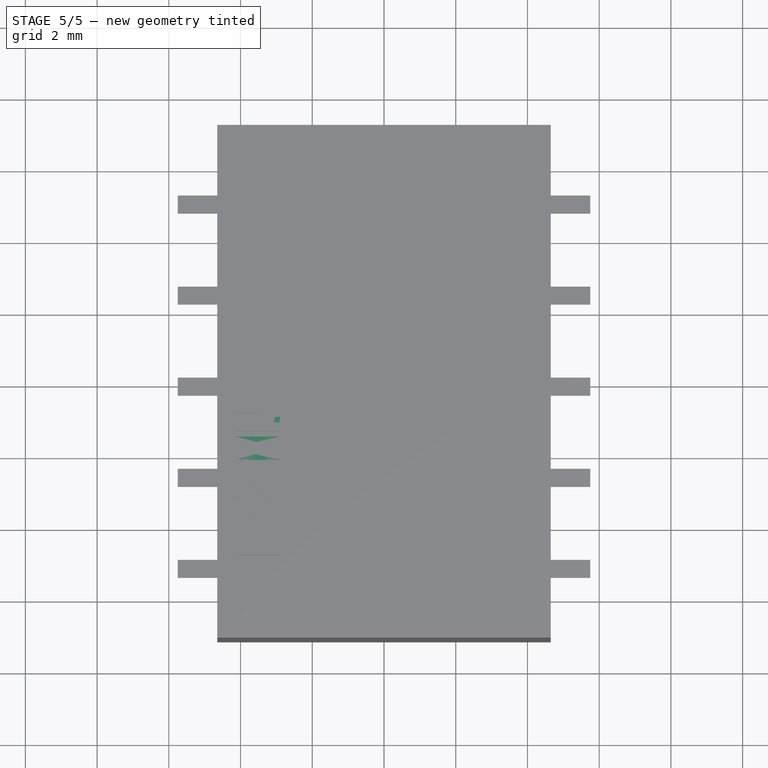
[diagram: stage 5 of 5 — top view after this stage's code; geometry added in this stage tinted green]
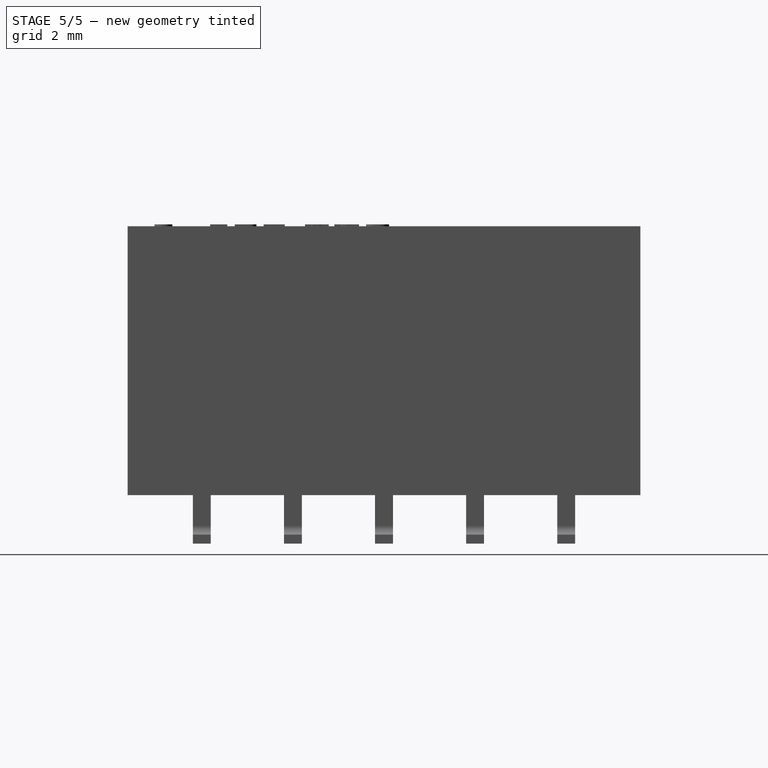
[diagram: stage 5 of 5 — right view after this stage's code; geometry added in this stage tinted green]
FEATURE [Sketcher::SketchObject] Sketch011
  AttachmentOffset = pos=(0,0,5.08) rot=(0,0,1;0rad)
  MapMode = 5
  Placement = pos=(0,-5.08,-1.1e-15) rot=(1,0,0;1.5708rad)
  Support = -> [XZ_Plane002]
  sketch-geometry (7):
    g0: LineSegment StartX=-3.935 StartY=1.35 StartZ=0 EndX=-3.935 EndY=0.25 EndZ=0
    g1: LineSegment StartX=-3.935 StartY=0.25 StartZ=0 EndX=-5.75 EndY=0.25 EndZ=0
    g2: LineSegment StartX=-5.75 StartY=0.25 StartZ=0 EndX=-5.75 EndY=0 EndZ=0
    g3: LineSegment StartX=-5.75 StartY=0 StartZ=0 EndX=-3.685 EndY=0 EndZ=0
    g4: LineSegment StartX=-3.685 StartY=0 StartZ=0 EndX=-3.685 EndY=1.35 EndZ=0
    g5: LineSegment StartX=-3.685 StartY=1.35 StartZ=0 EndX=-3.935 EndY=1.35 EndZ=0
    g6: GeomPoint X=-3.81 Y=1.35 Z=0
  constraints (19):
    c: Vertical(g0)
    c: Coincident(g0,g1)
    c: Horizontal(g1)
    c: Coincident(g1,g2)
    c: PointOnObject(g2,g-1)
    c: Vertical(g2)
    c: Coincident(g2,g3)
    c: Horizontal(g3)
    c: Coincident(g3,g4)
    c: Vertical(g4)
    c: Coincident(g4,g5)
    c: Coincident(g5,g0)
    c: Horizontal(g5)
    c: DistanceY(g2,g2) = 0.25
    c: Symmetric(g0,g4,g6)
    c: DistanceX(g6,g-1) = 3.81
    c: Equal(g5,g2)
    c: DistanceX(g1,g6) = 1.94
    c: DistanceY(g4,g4) = 1.35
FEATURE [PartDesign::Pad] Pad007
  Length = 0.5
  Length2 = 100
  Midplane = true
  Placement = pos=(0,0,0) rot=(1,0,0;1.5708rad)
  Profile = -> Sketch011
  Type = 0
FEATURE [PartDesign::Fillet] Fillet
  Base = -> Pad007 [Edge2]
  BaseFeature = -> Pad007
  Placement = pos=(0,0,0) rot=(1,0,0;1.5708rad)
  Radius = 0.25
FEATURE [PartDesign::Fillet] Fillet001
  Base = -> Fillet [Edge20]
  BaseFeature = -> Fillet
  Placement = pos=(0,0,0) rot=(1,0,0;1.5708rad)
  Radius = 0.5
FEATURE [PartDesign::Body] Body001
  Group = -> [Sketch011,Pad007,Fillet,Fillet001]
  Origin = -> Origin002
  Tip = -> Fillet001
FEATURE [PartDesign::FeatureBase] Clone
  BaseFeature = -> Body001
FEATURE [PartDesign::Body] Body002
  BaseFeature = -> Body001
  Group = -> [Clone]
  Origin = -> Origin003
  Placement = pos=(0,0,0) rot=(0,0,1;3.14159rad)
  Tip = -> Clone
FEATURE [Part::FeaturePython] Array  # Draft array (typed FeaturePython)
  Angle = 360
  ArrayType = 0
  Axis = (0,0,1)
  Base = -> Body001
  Center = (0,0,0)
  Fuse = false
  IntervalAxis = (0,0,0)
  IntervalX = (1,0,0)
  IntervalY = (0,2.54,0)
  IntervalZ = (0,0,1)
  NumberPolar = 1
  NumberX = 1
  NumberY = 5
  NumberZ = 1
FEATURE [Part::FeaturePython] Array001  # Draft array (typed FeaturePython)
  Angle = 360
  ArrayType = 0
  Axis = (0,0,1)
  Base = -> Body002
  Center = (0,0,0)
  Fuse = false
  IntervalAxis = (0,0,0)
  IntervalX = (1,0,0)
  IntervalY = (0,-2.54,0)
  IntervalZ = (0,0,1)
  NumberPolar = 1
  NumberX = 1
  NumberY = 5
  NumberZ = 1
FEATURE [Part::MultiFuse] Fusion  label="EB2-NU_Pins"
  Shapes = -> [Array,Array001]
FEATURE [Part::Part2DObjectPython] ShapeString  # Draft 2D object (typed FeaturePython)
  AttachmentOffset = pos=(-1,-1,0) rot=(0,0,-1;1.5708rad)
  FontFile = <userpath>/Desktop/GitHub/freecad-projects/00-fonts/coolvetica condensed rg.ttf
  MapMode = 6
  Placement = pos=(-2.9,-4.9,8.85) rot=(0,0,1;1.5708rad)
  Size = 0.75
  String = EB2 NU
  Support = -> [Pad006]
  Tracking = 0.125
FEATURE [PartDesign::Pad] Pad008  label="ShapeStringPad"
  BaseFeature = -> Pad006
  Length = 0.05
  Length2 = 100
  Profile = -> ShapeString
  Refine = true
  Type = 0
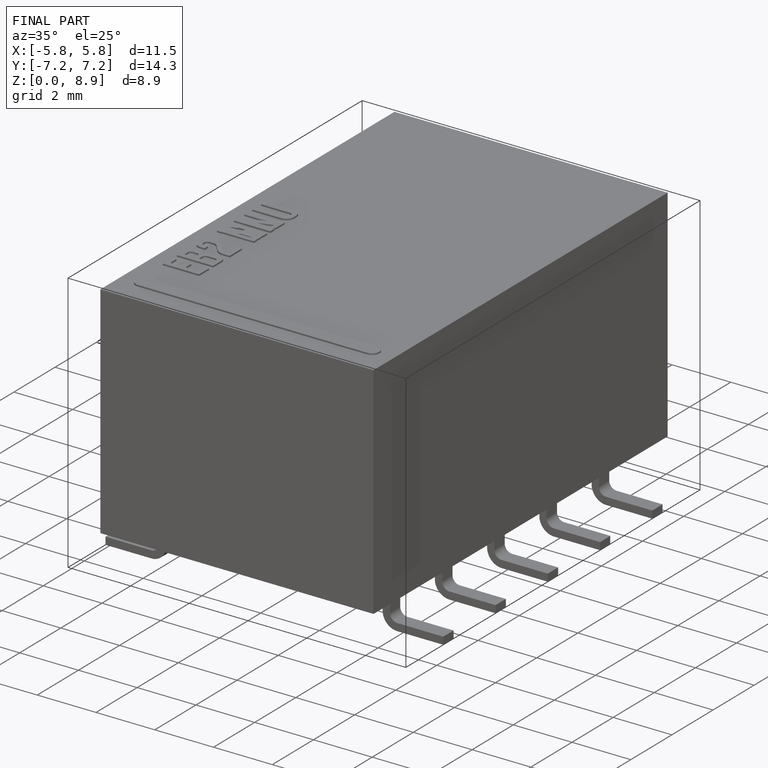
[diagram: finished part — iso view with bounding-box wireframe]
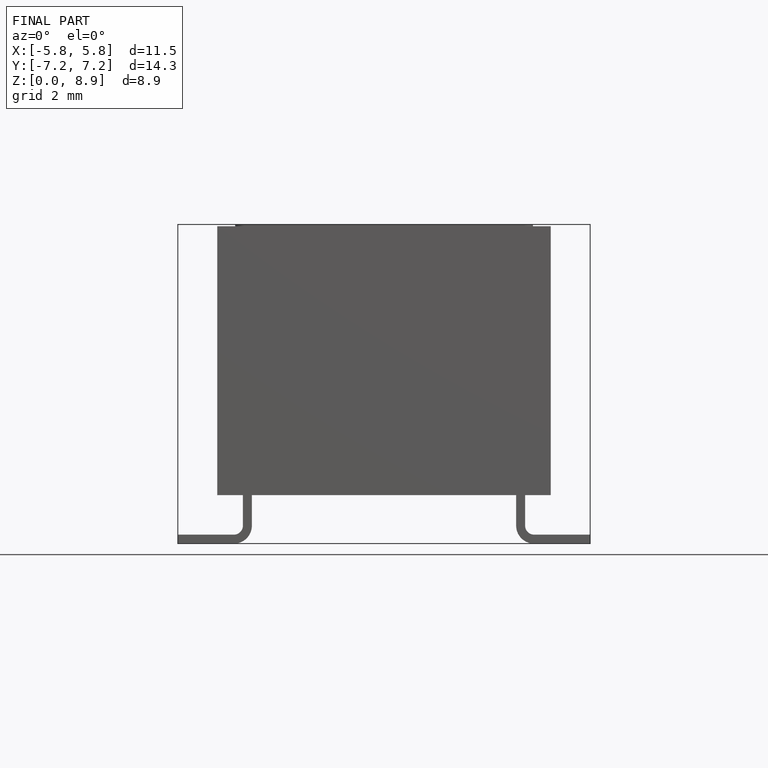
[diagram: finished part — front view with bounding-box wireframe]
